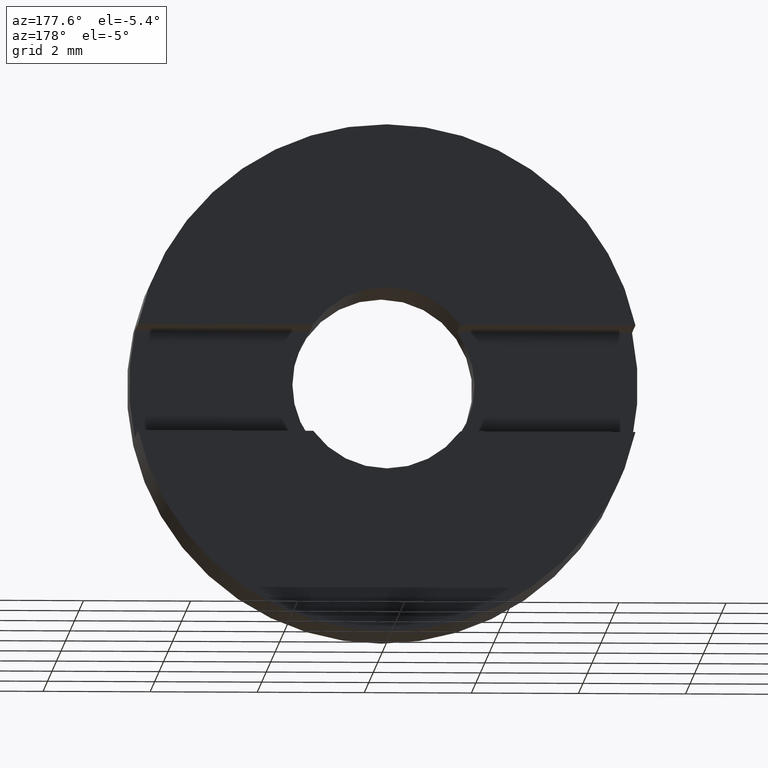
[diagram: clean part render]
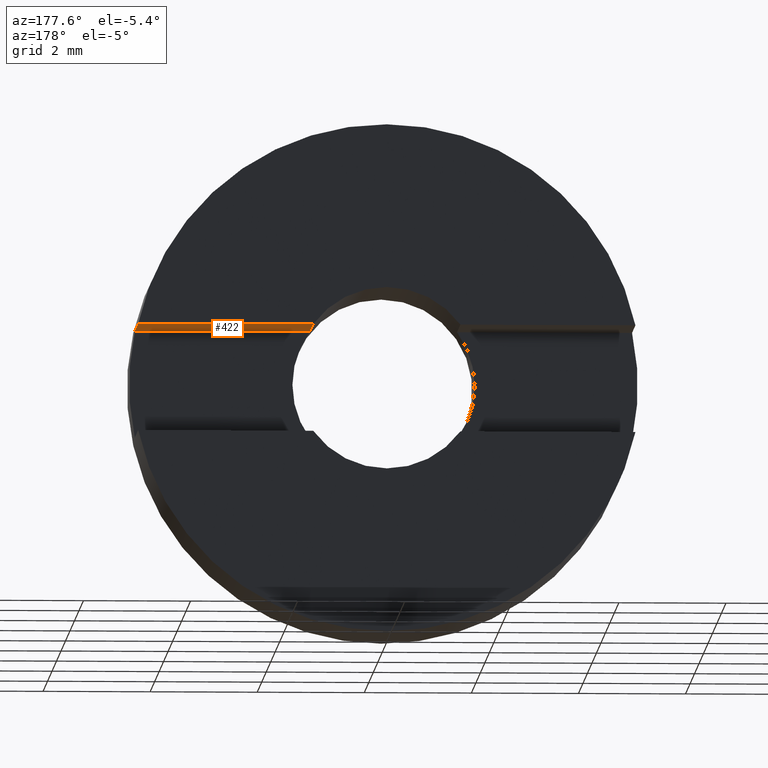
[diagram: same view with one face highlighted and labeled with its STEP entity id]
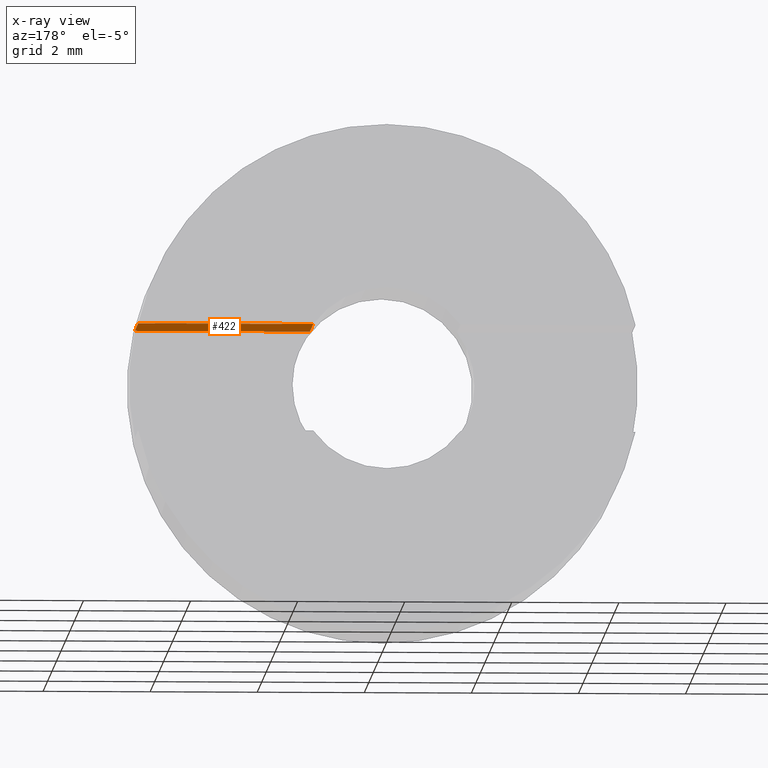
[diagram: x-ray of the same camera — body ghosted, the highlighted face saturated]
A machine part, auxiliary view. The second image highlights one B-rep face of the part: STEP entity #422.
The next image is the same camera in x-ray: the body ghosted, the highlighted face saturated — about 0% of this face is hidden behind the body in this view.
In plain terms, the highlighted planar face has unit normal (-0, 0, 1).
Its self-contained STEP definition (entity closure, byte-faithful):
#25 = DIRECTION ( 'NONE',  ( 0.0000000000000000000, -1.000000000000000000, 0.0000000000000000000 ) ) ;
#26 = DIRECTION ( 'NONE',  ( -0.0000000000000000000, 1.000000000000000000, -0.0000000000000000000 ) ) ;
#30 = CARTESIAN_POINT ( 'NONE',  ( -26.85254027261461800, -3.464249787179431600, 1.000000000000000000 ) ) ;
#37 = ORIENTED_EDGE ( 'NONE', *, *, #516, .F. ) ;
#50 = CARTESIAN_POINT ( 'NONE',  ( -26.85254027261461800, -3.464249787179431600, 1.000000000000000000 ) ) ;
#57 = VERTEX_POINT ( 'NONE', #568 ) ;
#63 = ORIENTED_EDGE ( 'NONE', *, *, #571, .T. ) ;
#77 = CARTESIAN_POINT ( 'NONE',  ( 4.643543905251684500, -3.464249787179428400, 0.9999999999999995600 ) ) ;
#93 = VECTOR ( 'NONE', #25, 1000.000000000000000 ) ;
#102 = ORIENTED_EDGE ( 'NONE', *, *, #288, .F. ) ;
#111 = EDGE_CURVE ( 'NONE', #57, #272, #238, .T. ) ;
#140 = DIRECTION ( 'NONE',  ( 1.000000000000000000, 0.0000000000000000000, 0.0000000000000000000 ) ) ;
#141 = DIRECTION ( 'NONE',  ( -0.0000000000000000000, 0.0000000000000000000, 1.000000000000000000 ) ) ;
#192 = LINE ( 'NONE', #255, #338 ) ;
#197 = VECTOR ( 'NONE', #343, 1000.000000000000000 ) ;
#222 = VECTOR ( 'NONE', #140, 1000.000000000000000 ) ;
#238 = LINE ( 'NONE', #30, #197 ) ;
#253 = CARTESIAN_POINT ( 'NONE',  ( 1.374772708486760900, 56.26084262701361600, 1.000000000000000000 ) ) ;
#255 = CARTESIAN_POINT ( 'NONE',  ( 4.643543905251685400, 56.26084262701361600, 1.000000000000000000 ) ) ;
#272 = VERTEX_POINT ( 'NONE', #77 ) ;
#284 = LINE ( 'NONE', #253, #93 ) ;
#288 = EDGE_CURVE ( 'NONE', #472, #57, #284, .T. ) ;
#296 = VERTEX_POINT ( 'NONE', #305 ) ;
#305 = CARTESIAN_POINT ( 'NONE',  ( 4.643543905251672000, -1.964249787179431300, 1.000000000000000000 ) ) ;
#315 = PLANE ( 'NONE',  #436 ) ;
#338 = VECTOR ( 'NONE', #26, 1000.000000000000000 ) ;
#343 = DIRECTION ( 'NONE',  ( 1.000000000000000000, 0.0000000000000000000, 0.0000000000000000000 ) ) ;
#360 = EDGE_LOOP ( 'NONE', ( #467, #102, #63, #37 ) ) ;
#422 = ADVANCED_FACE ( 'NONE', ( #523 ), #315, .F. ) ;
#436 = AXIS2_PLACEMENT_3D ( 'NONE', #50, #141, #451 ) ;
#444 = LINE ( 'NONE', #579, #222 ) ;
#451 = DIRECTION ( 'NONE',  ( 1.000000000000000000, 0.0000000000000000000, 0.0000000000000000000 ) ) ;
#467 = ORIENTED_EDGE ( 'NONE', *, *, #111, .F. ) ;
#472 = VERTEX_POINT ( 'NONE', #539 ) ;
#516 = EDGE_CURVE ( 'NONE', #272, #296, #192, .T. ) ;
#523 = FACE_OUTER_BOUND ( 'NONE', #360, .T. ) ;
#539 = CARTESIAN_POINT ( 'NONE',  ( 1.374772708486760900, -1.964249787179434000, 0.9999999999999995600 ) ) ;
#568 = CARTESIAN_POINT ( 'NONE',  ( 1.374772708486760900, -3.464249787179428400, 0.9999999999999995600 ) ) ;
#571 = EDGE_CURVE ( 'NONE', #472, #296, #444, .T. ) ;
#579 = CARTESIAN_POINT ( 'NONE',  ( -26.85254027261461800, -1.964249787179431300, 1.000000000000000000 ) ) ;